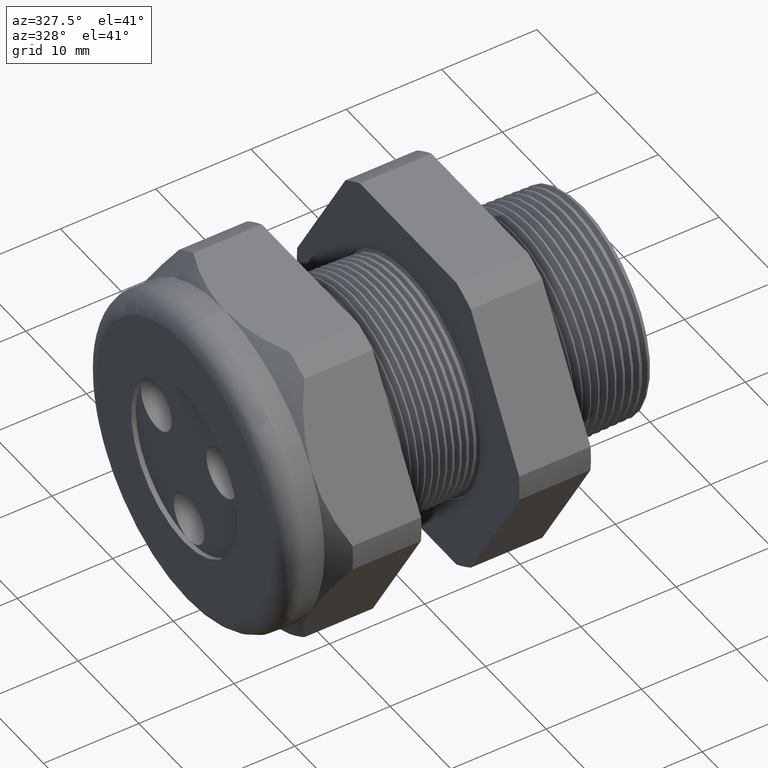
[diagram: clean part render]
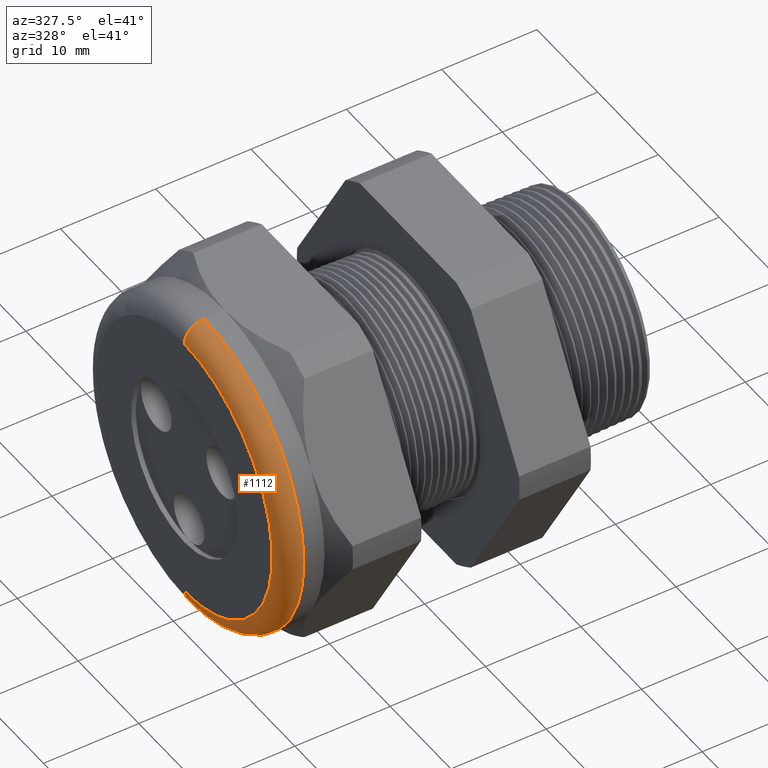
[diagram: same view with one face highlighted and labeled with its STEP entity id]
A machine part, auxiliary view. The second image highlights one B-rep face of the part: STEP entity #1112.
In plain terms, the highlighted toroidal blend (fillet) surface has major radius 14.478 mm and minor (blend) radius 2.032 mm.
Its self-contained STEP definition (entity closure, byte-faithful):
#306 = VERTEX_POINT ( 'NONE', #2419 ) ;
#308 = VERTEX_POINT ( 'NONE', #2418 ) ;
#310 = EDGE_CURVE ( 'NONE', #316, #306, #2416, .T. ) ;
#315 = VERTEX_POINT ( 'NONE', #2405 ) ;
#316 = VERTEX_POINT ( 'NONE', #2404 ) ;
#351 = EDGE_CURVE ( 'NONE', #315, #308, #2463, .T. ) ;
#963 = EDGE_CURVE ( 'NONE', #306, #308, #3697, .T. ) ;
#978 = EDGE_CURVE ( 'NONE', #315, #316, #3726, .T. ) ;
#1112 = ADVANCED_FACE ( 'NONE', ( #3918 ), #3917, .T. ) ;
#1113 = EDGE_LOOP ( 'NONE', ( #1114, #1166, #1167, #1168 ) ) ;
#1114 = ORIENTED_EDGE ( 'NONE', *, *, #310, .F. ) ;
#1166 = ORIENTED_EDGE ( 'NONE', *, *, #978, .F. ) ;
#1167 = ORIENTED_EDGE ( 'NONE', *, *, #351, .T. ) ;
#1168 = ORIENTED_EDGE ( 'NONE', *, *, #963, .F. ) ;
#2404 = CARTESIAN_POINT ( 'NONE',  ( -1.449999999999999700, 0.0000000000000000000, -0.6499999999999999100 ) ) ;
#2405 = CARTESIAN_POINT ( 'NONE',  ( -1.449999999999999700, 7.960204194457794200E-017, 0.6499999999999999100 ) ) ;
#2412 = DIRECTION ( 'NONE',  ( 0.0000000000000000000, -1.224646799147353900E-016, 1.000000000000000000 ) ) ;
#2413 = DIRECTION ( 'NONE',  ( 0.0000000000000000000, 1.000000000000000000, 1.224646799147353200E-016 ) ) ;
#2414 = CARTESIAN_POINT ( 'NONE',  ( -1.449999999999999700, 6.980486755139912600E-017, -0.5699999999999999500 ) ) ;
#2415 = AXIS2_PLACEMENT_3D ( 'NONE', #2414, #2413, #2412 ) ;
#2416 = CIRCLE ( 'NONE', #2415, 0.07999999999999996000 ) ;
#2418 = CARTESIAN_POINT ( 'NONE',  ( -1.529999999999999800, 0.0000000000000000000, 0.5699999999999999500 ) ) ;
#2419 = CARTESIAN_POINT ( 'NONE',  ( -1.529999999999999800, 7.470345474798854000E-017, -0.5699999999999999500 ) ) ;
#2459 = DIRECTION ( 'NONE',  ( 0.0000000000000000000, 0.0000000000000000000, -1.000000000000000000 ) ) ;
#2460 = DIRECTION ( 'NONE',  ( 0.0000000000000000000, -1.000000000000000000, 0.0000000000000000000 ) ) ;
#2461 = CARTESIAN_POINT ( 'NONE',  ( -1.449999999999999700, 0.0000000000000000000, 0.5699999999999999500 ) ) ;
#2462 = AXIS2_PLACEMENT_3D ( 'NONE', #2461, #2460, #2459 ) ;
#2463 = CIRCLE ( 'NONE', #2462, 0.07999999999999996000 ) ;
#3693 = DIRECTION ( 'NONE',  ( 0.0000000000000000000, 0.0000000000000000000, 1.000000000000000000 ) ) ;
#3694 = DIRECTION ( 'NONE',  ( -1.000000000000000000, 0.0000000000000000000, 0.0000000000000000000 ) ) ;
#3695 = CARTESIAN_POINT ( 'NONE',  ( -1.529999999999999800, 0.0000000000000000000, 0.0000000000000000000 ) ) ;
#3696 = AXIS2_PLACEMENT_3D ( 'NONE', #3695, #3694, #3693 ) ;
#3697 = CIRCLE ( 'NONE', #3696, 0.5699999999999999500 ) ;
#3723 = DIRECTION ( 'NONE',  ( 0.0000000000000000000, 0.0000000000000000000, 1.000000000000000000 ) ) ;
#3724 = DIRECTION ( 'NONE',  ( 1.000000000000000000, 0.0000000000000000000, 0.0000000000000000000 ) ) ;
#3725 = AXIS2_PLACEMENT_3D ( 'NONE', #3731, #3724, #3723 ) ;
#3726 = CIRCLE ( 'NONE', #3725, 0.6499999999999999100 ) ;
#3731 = CARTESIAN_POINT ( 'NONE',  ( -1.449999999999999700, 0.0000000000000000000, 0.0000000000000000000 ) ) ;
#3913 = DIRECTION ( 'NONE',  ( 0.0000000000000000000, 0.0000000000000000000, 1.000000000000000000 ) ) ;
#3914 = DIRECTION ( 'NONE',  ( -1.000000000000000000, 0.0000000000000000000, 0.0000000000000000000 ) ) ;
#3915 = CARTESIAN_POINT ( 'NONE',  ( -1.449999999999999700, 0.0000000000000000000, 0.0000000000000000000 ) ) ;
#3916 = AXIS2_PLACEMENT_3D ( 'NONE', #3915, #3914, #3913 ) ;
#3917 = TOROIDAL_SURFACE ( 'NONE', #3916, 0.5699999999999999500, 0.08000000000000000200 ) ;
#3918 = FACE_OUTER_BOUND ( 'NONE', #1113, .T. ) ;